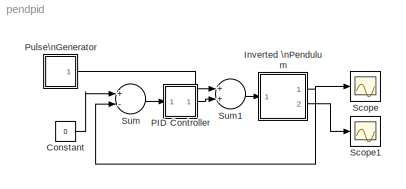
MODEL pendpid
KIND model
BLOCK [Constant] Constant
  SID = 1
  Value = 0
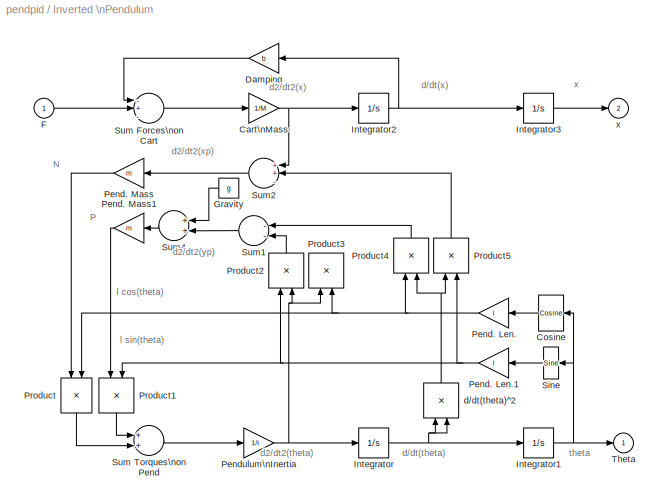
BLOCK [SubSystem] Inverted \nPendulum
  Ports = [1, 2]
  RequestExecContextInheritance = off
  SID = 2
BLOCK [Gain] Inverted \nPendulum/Cart\nMass
  Gain = 1/M
  SID = 4
BLOCK [Reference] Inverted \nPendulum/Cosine  REF=simulink/Lookup\nTables/Cosine
  Formula = cos(2*pi*u)
  InternalRulePriority = Speed
  NumDataPoints = (2^5)+1
  OutputWordLength = 16
  Ports = [1, 1]
  SID = 63
  SourceBlock = simulink/Lookup\nTables/Cosine
  SourceProductBaseCode = SL
  SourceProductName = Simulink
  SourceType = Sine and Cosine
BLOCK [Gain] Inverted \nPendulum/Damping
  Gain = b
  SID = 5
BLOCK [Inport] Inverted \nPendulum/F
  IconDisplay = Port number
  SID = 3
BLOCK [Constant] Inverted \nPendulum/Gravity
  SID = 6
  Value = g
BLOCK [Integrator] Inverted \nPendulum/Integrator
  Ports = [1, 1]
  SID = 8
BLOCK [Integrator] Inverted \nPendulum/Integrator1
  Ports = [1, 1]
  SID = 9
BLOCK [Integrator] Inverted \nPendulum/Integrator2
  Ports = [1, 1]
  SID = 10
BLOCK [Integrator] Inverted \nPendulum/Integrator3
  Ports = [1, 1]
  SID = 11
BLOCK [Gain] Inverted \nPendulum/Pend. Len.
  Gain = l
  SID = 12
BLOCK [Gain] Inverted \nPendulum/Pend. Len.1
  Gain = l
  SID = 13
BLOCK [Gain] Inverted \nPendulum/Pend. Mass
  Gain = m
  SID = 14
BLOCK [Gain] Inverted \nPendulum/Pend. Mass1
  Gain = m
  SID = 15
BLOCK [Gain] Inverted \nPendulum/Pendulum\nInertia
  Gain = 1/i
  SID = 16
BLOCK [Product] Inverted \nPendulum/Product
  Ports = [2, 1]
  SID = 17
BLOCK [Product] Inverted \nPendulum/Product1
  Ports = [2, 1]
  SID = 18
BLOCK [Product] Inverted \nPendulum/Product2
  Ports = [2, 1]
  SID = 19
BLOCK [Product] Inverted \nPendulum/Product3
  Ports = [2, 1]
  SID = 20
BLOCK [Product] Inverted \nPendulum/Product4
  Ports = [2, 1]
  SID = 21
BLOCK [Product] Inverted \nPendulum/Product5
  Ports = [2, 1]
  SID = 22
BLOCK [Reference] Inverted \nPendulum/Sine  REF=simulink/Lookup\nTables/Sine
  Formula = sin(2*pi*u)
  InternalRulePriority = Speed
  NumDataPoints = (2^5)+1
  OutputWordLength = 16
  Ports = [1, 1]
  SID = 62
  SourceBlock = simulink/Lookup\nTables/Sine
  SourceProductBaseCode = SL
  SourceProductName = Simulink
  SourceType = Sine and Cosine
BLOCK [Sum] Inverted \nPendulum/Sum Forces\non Cart
  Inputs = -+-
  Ports = [3, 1]
  SID = 23
BLOCK [Sum] Inverted \nPendulum/Sum Torques\non Pend
  Ports = [2, 1]
  SID = 24
BLOCK [Sum] Inverted \nPendulum/Sum1
  Inputs = --
  Ports = [2, 1]
  SID = 25
BLOCK [Sum] Inverted \nPendulum/Sum2
  Inputs = ++-
  Ports = [3, 1]
  SID = 26
BLOCK [Sum] Inverted \nPendulum/Sum4
  Ports = [2, 1]
  SID = 27
BLOCK [Outport] Inverted \nPendulum/Theta
  IconDisplay = Port number
  InitialOutput = 0
  SID = 30
BLOCK [Product] Inverted \nPendulum/d//dt(theta)^2
  Ports = [2, 1]
  SID = 29
BLOCK [Outport] Inverted \nPendulum/x
  IconDisplay = Port number
  InitialOutput = 0
  Port = 2
  SID = 31
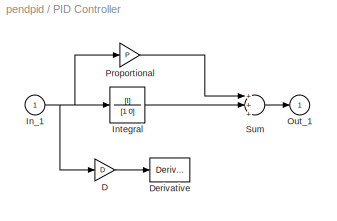
BLOCK [SubSystem] PID Controller
  Ports = [1, 1]
  RequestExecContextInheritance = off
  SID = 44
BLOCK [Gain] PID Controller/D
  Gain = D
  SID = 46
BLOCK [Derivative] PID Controller/Derivative
  SID = 47
BLOCK [Inport] PID Controller/In_1
  IconDisplay = Port number
  SID = 45
BLOCK [TransferFcn] PID Controller/Integral
  Denominator = [1 0]
  Numerator = [I]
  SID = 48
BLOCK [Outport] PID Controller/Out_1
  IconDisplay = Port number
  InitialOutput = 0
  SID = 51
BLOCK [Gain] PID Controller/Proportional
  Gain = P
  SID = 49
BLOCK [Sum] PID Controller/Sum
  Inputs = +++
  Ports = [3, 1]
  SID = 50
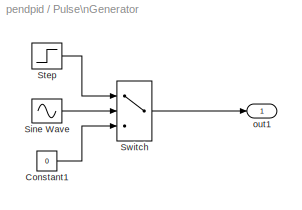
BLOCK [SubSystem] Pulse\nGenerator
  Ports = [0, 1]
  RequestExecContextInheritance = off
  SID = 52
BLOCK [Constant] Pulse\nGenerator/Constant1
  SID = 53
  Value = 0
BLOCK [Sin] Pulse\nGenerator/Sine Wave
  Frequency = 2*pi./period
  Phase = -2*pi*(start./period + duty/200 - 1/4)
  Ports = [0, 1]
  SID = 54
BLOCK [Step] Pulse\nGenerator/Step
  After = amplitude
  SID = 55
  Time = start
BLOCK [Switch] Pulse\nGenerator/Switch
  SID = 56
  Threshold = sin(pi*(0.5 - duty/100))
BLOCK [Outport] Pulse\nGenerator/out1
  IconDisplay = Port number
  InitialOutput = 0
  SID = 57
BLOCK [Scope] Scope
  Floating = off
  NumInputPorts = 1
  Ports = [1]
  SID = 58
  ScopeSpecificationString = C++SS(StrPVP('Location','[67, 90, 391, 329]'),StrPVP('Open','off'),StrPVP('Grid','on'),StrPVP('TickLabels','on'),StrPVP('ZoomMode','on'),StrPVP('TimeRange','auto'),StrPVP('YMin','0               '),StrPVP('YMax','0.045           '),StrPVP('SaveToWorkspace','off'),StrPVP('SaveName','ScopeData'),StrPVP('LimitMaxRows','on'),StrPVP('MaxRows','5000'),StrPVP('Decimation','1'),StrPVP('BlockParamSampleInp...<+75ch>
BLOCK [Scope] Scope1
  Floating = off
  NumInputPorts = 1
  Ports = [1]
  SID = 59
  ScopeSpecificationString = Simulink.scopes.TimeScopeBlockCfg('CurrentConfiguration', extmgr.ConfigurationSet(extmgr.Configuration('Core','General UI',true),extmgr.Configuration('Core','Source UI',true),extmgr.Configuration('Sources','WiredSimulink',true,'DataLoggingLimitDataPoints',true,'DataLoggingDecimation','1','DataLoggingDecimateData',true,'DataLoggingSaveFormat','Array'),extmgr.Configuration('Visuals','Time Domain',tr...<+1618ch>
BLOCK [Sum] Sum
  Inputs = +-
  Ports = [2, 1]
  SID = 60
BLOCK [Sum] Sum1
  Ports = [2, 1]
  SID = 61
ANNOTATION Inverted \nPendulum: N
ANNOTATION Inverted \nPendulum: P
ANNOTATION Inverted \nPendulum: d/dt(theta)
ANNOTATION Inverted \nPendulum: d/dt(x)
ANNOTATION Inverted \nPendulum: d2/dt2(theta)
ANNOTATION Inverted \nPendulum: d2/dt2(x)
ANNOTATION Inverted \nPendulum: d2/dt2(xp)
ANNOTATION Inverted \nPendulum: d2/dt2(yp)
ANNOTATION Inverted \nPendulum: l cos(theta)
ANNOTATION Inverted \nPendulum: l sin(theta)
ANNOTATION Inverted \nPendulum: theta
ANNOTATION Inverted \nPendulum: x
LINE Constant:1 -> Sum:1
NET Inverted \nPendulum/Cart\nMass:1 -> Inverted \nPendulum/Integrator2:1, Inverted \nPendulum/Sum2:1
LINE Inverted \nPendulum/Cosine:1 -> Inverted \nPendulum/Pend. Len.:1
LINE Inverted \nPendulum/Damping:1 -> Inverted \nPendulum/Sum Forces\non Cart:1
LINE Inverted \nPendulum/F:1 -> Inverted \nPendulum/Sum Forces\non Cart:2
LINE Inverted \nPendulum/Gravity:1 -> Inverted \nPendulum/Sum4:1
NET Inverted \nPendulum/Integrator1:1 -> Inverted \nPendulum/Cosine:1, Inverted \nPendulum/Sine:1, Inverted \nPendulum/Theta:1
NET Inverted \nPendulum/Integrator2:1 -> Inverted \nPendulum/Damping:1, Inverted \nPendulum/Integrator3:1
LINE Inverted \nPendulum/Integrator3:1 -> Inverted \nPendulum/x:1
NET Inverted \nPendulum/Integrator:1 -> Inverted \nPendulum/Integrator1:1, Inverted \nPendulum/d//dt(theta)^2:1, Inverted \nPendulum/d//dt(theta)^2:2
NET Inverted \nPendulum/Pend. Len.1:1 -> Inverted \nPendulum/Product1:2, Inverted \nPendulum/Product2:1, Inverted \nPendulum/Product5:2
NET Inverted \nPendulum/Pend. Len.:1 -> Inverted \nPendulum/Product3:2, Inverted \nPendulum/Product4:1, Inverted \nPendulum/Product:2
LINE Inverted \nPendulum/Pend. Mass1:1 -> Inverted \nPendulum/Product1:1
LINE Inverted \nPendulum/Pend. Mass:1 -> Inverted \nPendulum/Product:1
NET Inverted \nPendulum/Pendulum\nInertia:1 -> Inverted \nPendulum/Integrator:1, Inverted \nPendulum/Product2:2, Inverted \nPendulum/Product3:1
LINE Inverted \nPendulum/Product1:1 -> Inverted \nPendulum/Sum Torques\non Pend:1
LINE Inverted \nPendulum/Product2:1 -> Inverted \nPendulum/Sum1:2
LINE Inverted \nPendulum/Product4:1 -> Inverted \nPendulum/Sum1:1
LINE Inverted \nPendulum/Product5:1 -> Inverted \nPendulum/Sum2:2
LINE Inverted \nPendulum/Product:1 -> Inverted \nPendulum/Sum Torques\non Pend:2
LINE Inverted \nPendulum/Sine:1 -> Inverted \nPendulum/Pend. Len.1:1
LINE Inverted \nPendulum/Sum Forces\non Cart:1 -> Inverted \nPendulum/Cart\nMass:1
LINE Inverted \nPendulum/Sum Torques\non Pend:1 -> Inverted \nPendulum/Pendulum\nInertia:1
LINE Inverted \nPendulum/Sum1:1 -> Inverted \nPendulum/Sum4:2
LINE Inverted \nPendulum/Sum2:1 -> Inverted \nPendulum/Pend. Mass:1
LINE Inverted \nPendulum/Sum4:1 -> Inverted \nPendulum/Pend. Mass1:1
NET Inverted \nPendulum/d//dt(theta)^2:1 -> Inverted \nPendulum/Product4:2, Inverted \nPendulum/Product5:1
NET Inverted \nPendulum:1 -> Scope:1, Sum:2
LINE Inverted \nPendulum:2 -> Scope1:1
LINE PID Controller/D:1 -> PID Controller/Derivative:1
NET PID Controller/In_1:1 -> PID Controller/D:1, PID Controller/Integral:1, PID Controller/Proportional:1
LINE PID Controller/Integral:1 -> PID Controller/Sum:2
LINE PID Controller/Proportional:1 -> PID Controller/Sum:1
LINE PID Controller/Sum:1 -> PID Controller/Out_1:1
LINE PID Controller:1 -> Sum1:2
LINE Pulse\nGenerator/Constant1:1 -> Pulse\nGenerator/Switch:3
LINE Pulse\nGenerator/Sine Wave:1 -> Pulse\nGenerator/Switch:2
LINE Pulse\nGenerator/Step:1 -> Pulse\nGenerator/Switch:1
LINE Pulse\nGenerator/Switch:1 -> Pulse\nGenerator/out1:1
LINE Pulse\nGenerator:1 -> Sum1:1
LINE Sum1:1 -> Inverted \nPendulum:1
LINE Sum:1 -> PID Controller:1
note: NET lines group one-source signal fan-out (src -> all destinations, sorted); 1:1 wires keep LINE
